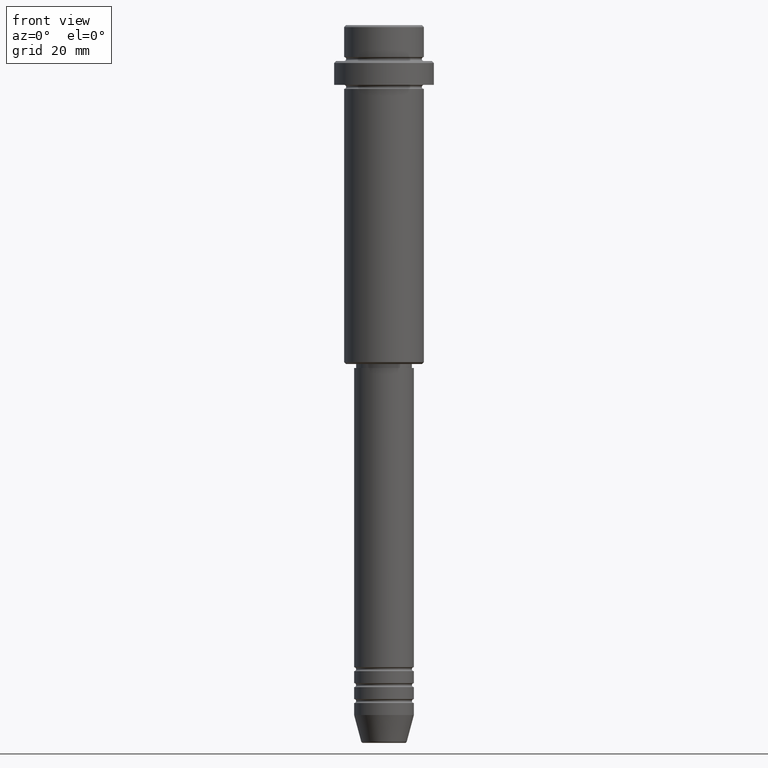
[diagram: clean part render]
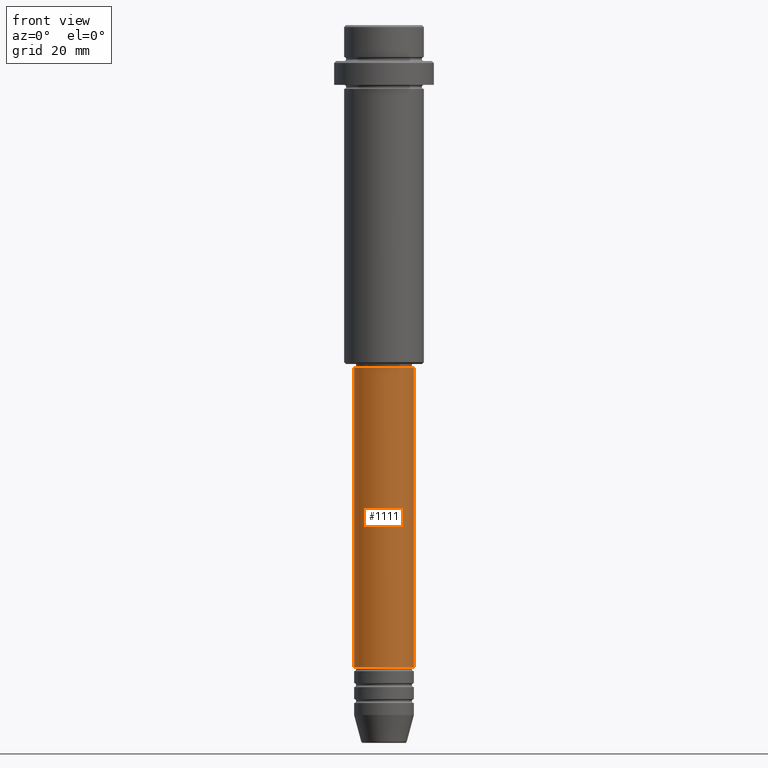
[diagram: same view with one face highlighted and labeled with its STEP entity id]
A machine part, front view. The second image highlights one B-rep face of the part: STEP entity #1111.
In plain terms, the highlighted cylindrical surface (edge-blend (fillet) strip) has radius 7.5 mm, axis along (-0, -0, 1).
Its self-contained STEP definition (entity closure, byte-faithful):
#48 = ORIENTED_EDGE ( 'NONE', *, *, #220, .T. ) ;
#71 = ORIENTED_EDGE ( 'NONE', *, *, #781, .F. ) ;
#93 = CIRCLE ( 'NONE', #669, 7.500000000000000000 ) ;
#114 = VECTOR ( 'NONE', #1373, 1000.000000000000000 ) ;
#122 = CARTESIAN_POINT ( 'NONE',  ( 0.000000000000000000, 0.000000000000000000, -86.00000000000000000 ) ) ;
#167 = CYLINDRICAL_SURFACE ( 'NONE', #1078, 7.500000000000000000 ) ;
#220 = EDGE_CURVE ( 'NONE', #794, #408, #93, .T. ) ;
#231 = DIRECTION ( 'NONE',  ( -0.000000000000000000, -0.000000000000000000, 1.000000000000000000 ) ) ;
#351 = CARTESIAN_POINT ( 'NONE',  ( 7.500000000000000000, 0.000000000000000000, -86.00000000000000000 ) ) ;
#381 = ORIENTED_EDGE ( 'NONE', *, *, #756, .F. ) ;
#383 = FACE_OUTER_BOUND ( 'NONE', #1026, .T. ) ;
#396 = CARTESIAN_POINT ( 'NONE',  ( 7.500000000000000000, 0.000000000000000000, 0.000000000000000000 ) ) ;
#401 = VERTEX_POINT ( 'NONE', #1122 ) ;
#407 = CARTESIAN_POINT ( 'NONE',  ( 0.000000000000000000, 0.000000000000000000, -160.9999999999998579 ) ) ;
#408 = VERTEX_POINT ( 'NONE', #1330 ) ;
#413 = DIRECTION ( 'NONE',  ( 1.000000000000000000, 0.000000000000000000, 0.000000000000000000 ) ) ;
#462 = VERTEX_POINT ( 'NONE', #351 ) ;
#501 = CIRCLE ( 'NONE', #878, 7.500000000000000000 ) ;
#535 = DIRECTION ( 'NONE',  ( -0.000000000000000000, -0.000000000000000000, 1.000000000000000000 ) ) ;
#545 = VECTOR ( 'NONE', #627, 1000.000000000000000 ) ;
#596 = DIRECTION ( 'NONE',  ( 1.000000000000000000, 0.000000000000000000, 0.000000000000000000 ) ) ;
#599 = CARTESIAN_POINT ( 'NONE',  ( -7.500000000000000000, 9.184850993605147944E-16, 0.000000000000000000 ) ) ;
#605 = CARTESIAN_POINT ( 'NONE',  ( 0.000000000000000000, 0.000000000000000000, 0.000000000000000000 ) ) ;
#627 = DIRECTION ( 'NONE',  ( -0.000000000000000000, -0.000000000000000000, 1.000000000000000000 ) ) ;
#648 = EDGE_CURVE ( 'NONE', #408, #462, #1046, .T. ) ;
#669 = AXIS2_PLACEMENT_3D ( 'NONE', #407, #535, #413 ) ;
#756 = EDGE_CURVE ( 'NONE', #794, #401, #1148, .T. ) ;
#781 = EDGE_CURVE ( 'NONE', #401, #462, #501, .T. ) ;
#794 = VERTEX_POINT ( 'NONE', #1087 ) ;
#807 = DIRECTION ( 'NONE',  ( -0.000000000000000000, -0.000000000000000000, 1.000000000000000000 ) ) ;
#878 = AXIS2_PLACEMENT_3D ( 'NONE', #122, #231, #1212 ) ;
#1026 = EDGE_LOOP ( 'NONE', ( #381, #48, #1167, #71 ) ) ;
#1046 = LINE ( 'NONE', #396, #545 ) ;
#1078 = AXIS2_PLACEMENT_3D ( 'NONE', #605, #807, #596 ) ;
#1087 = CARTESIAN_POINT ( 'NONE',  ( -7.500000000000000000, 9.184850993605147944E-16, -160.9999999999998579 ) ) ;
#1111 = ADVANCED_FACE ( 'NONE', ( #383 ), #167, .T. ) ;
#1122 = CARTESIAN_POINT ( 'NONE',  ( -7.500000000000000000, 9.184850993605147944E-16, -86.00000000000000000 ) ) ;
#1148 = LINE ( 'NONE', #599, #114 ) ;
#1167 = ORIENTED_EDGE ( 'NONE', *, *, #648, .T. ) ;
#1212 = DIRECTION ( 'NONE',  ( 1.000000000000000000, 0.000000000000000000, 0.000000000000000000 ) ) ;
#1330 = CARTESIAN_POINT ( 'NONE',  ( 7.500000000000000000, 0.000000000000000000, -160.9999999999998579 ) ) ;
#1373 = DIRECTION ( 'NONE',  ( -0.000000000000000000, -0.000000000000000000, 1.000000000000000000 ) ) ;